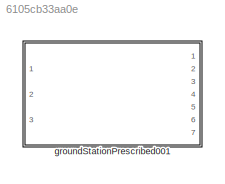
MODEL slx_6105cb33aa0e
KIND library
CONFIG AbsTol = auto
CONFIG EnableMultiTasking = off
CONFIG FixedStep = auto
CONFIG MaxStep = auto
CONFIG MinStep = auto
CONFIG RelTol = 1e-3
CONFIG SampleTimeConstraint = Unconstrained
CONFIG Solver = VariableStepAuto
CONFIG SolverName = VariableStepAuto
CONFIG StartTime = 0.0
CONFIG StopTime = 10.0
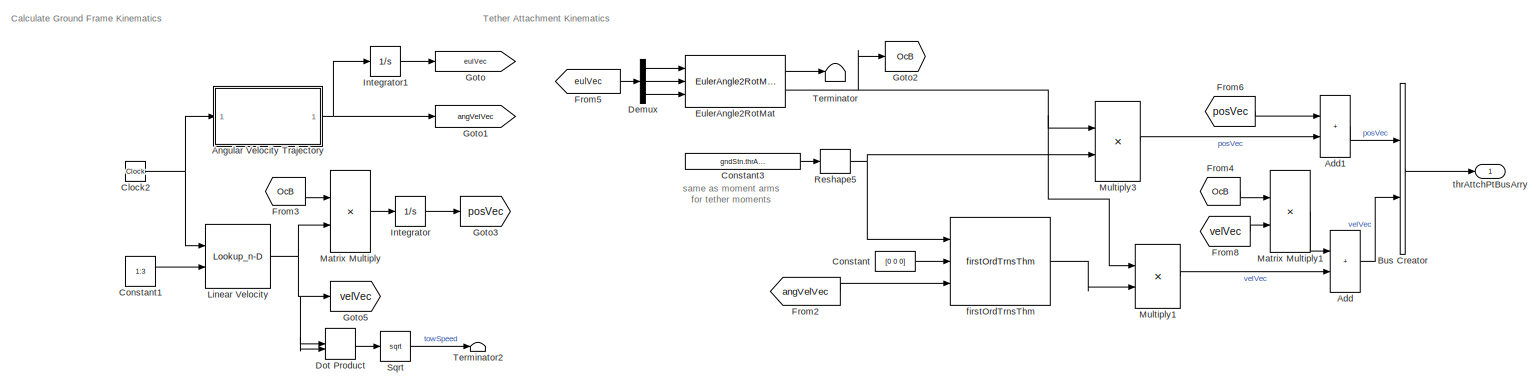
[diagram: groundStationPrescribed001 - part 1/2, full width, middle band]
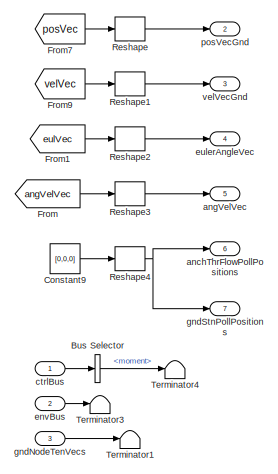
[diagram: groundStationPrescribed001 - part 2/2, right side, full height]
BLOCK [SubSystem] groundStationPrescribed001
  Ports = [3, 7]
  RequestExecContextInheritance = off
BLOCK [Sum] groundStationPrescribed001/Add
  IconShape = rectangular
  Ports = [2, 1]
BLOCK [Sum] groundStationPrescribed001/Add1
  IconShape = rectangular
  Ports = [2, 1]
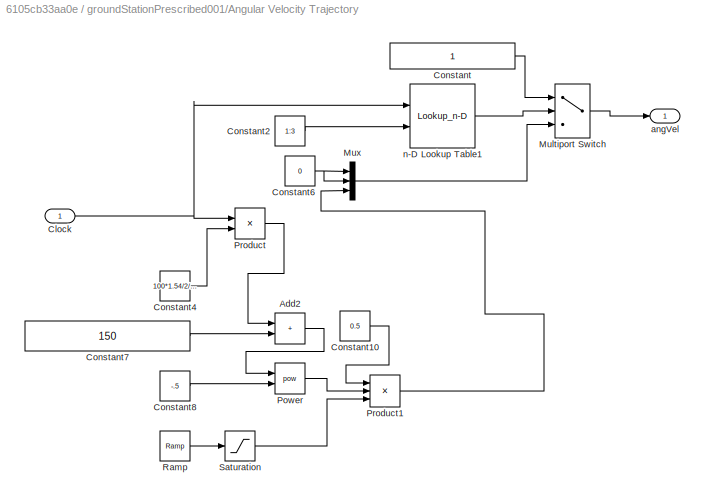
BLOCK [SubSystem] groundStationPrescribed001/Angular Velocity Trajectory
  Ports = [1, 1]
  RequestExecContextInheritance = off
BLOCK [Sum] groundStationPrescribed001/Angular Velocity Trajectory/Add2
  IconShape = rectangular
  Ports = [2, 1]
BLOCK [Inport] groundStationPrescribed001/Angular Velocity Trajectory/Clock
BLOCK [Constant] groundStationPrescribed001/Angular Velocity Trajectory/Constant
BLOCK [Constant] groundStationPrescribed001/Angular Velocity Trajectory/Constant10
  Value = 0.5
BLOCK [Constant] groundStationPrescribed001/Angular Velocity Trajectory/Constant2
  Value = 1:3
BLOCK [Constant] groundStationPrescribed001/Angular Velocity Trajectory/Constant4
  Value = 100*1.54/2/pi
BLOCK [Constant] groundStationPrescribed001/Angular Velocity Trajectory/Constant6
  Value = 0
BLOCK [Constant] groundStationPrescribed001/Angular Velocity Trajectory/Constant7
  Value = 150
BLOCK [Constant] groundStationPrescribed001/Angular Velocity Trajectory/Constant8
  Value = -.5
BLOCK [MultiPortSwitch] groundStationPrescribed001/Angular Velocity Trajectory/Multiport Switch
  InputSameDT = off
  Inputs = 2
  Ports = [3, 1]
  SaturateOnIntegerOverflow = off
BLOCK [Mux] groundStationPrescribed001/Angular Velocity Trajectory/Mux
  DisplayOption = bar
  Inputs = 3
  Ports = [3, 1]
BLOCK [Math] groundStationPrescribed001/Angular Velocity Trajectory/Power
  Operator = pow
  Ports = [2, 1]
BLOCK [Product] groundStationPrescribed001/Angular Velocity Trajectory/Product
  Ports = [2, 1]
BLOCK [Product] groundStationPrescribed001/Angular Velocity Trajectory/Product1
  Inputs = 3
  Ports = [3, 1]
BLOCK [Reference] groundStationPrescribed001/Angular Velocity Trajectory/Ramp  REF=simulink/Sources/Ramp
  Ports = [0, 1]
  SourceBlock = simulink/Sources/Ramp
  SourceProductBaseCode = SL
  SourceType = Ramp
BLOCK [Saturate] groundStationPrescribed001/Angular Velocity Trajectory/Saturation
  UpperLimit = 1
BLOCK [Outport] groundStationPrescribed001/Angular Velocity Trajectory/angVel
BLOCK [Lookup_n-D] groundStationPrescribed001/Angular Velocity Trajectory/n-D Lookup Table1
  BreakpointsForDimension1 = time
  BreakpointsForDimension2 = [1:3]
  BreakpointsForDimension3 = [5, 7]
  InternalRulePriority = Speed
  Ports = [2, 1]
  RndMeth = Simplest
  Table = angVel
BLOCK [BusCreator] groundStationPrescribed001/Bus Creator
  DisplayOption = bar
  InheritFromInputs = on
  Inputs = 2
  NonVirtualBus = on
  OutDataTypeStr = Bus: thrAttachPtKinematicsBus
  Ports = [2, 1]
BLOCK [BusSelector] groundStationPrescribed001/Bus Selector
  OutputSignals = moment
  Ports = [1, 1]
BLOCK [Clock] groundStationPrescribed001/Clock2
BLOCK [Constant] groundStationPrescribed001/Constant
  Value = [0 0 0]
BLOCK [Constant] groundStationPrescribed001/Constant1
  Value = 1:3
BLOCK [Constant] groundStationPrescribed001/Constant3
  Value = gndStn.thrAttach.posVec.Value
BLOCK [Constant] groundStationPrescribed001/Constant9
  Value = [0,0,0]
BLOCK [Demux] groundStationPrescribed001/Demux
  Outputs = 3
  Ports = [1, 3]
BLOCK [DotProduct] groundStationPrescribed001/Dot Product
  OutDataTypeStr = Inherit: Inherit via internal rule
BLOCK [Reference] groundStationPrescribed001/EulerAngle2RotMat  REF=eulAng2RotMat_ul/EulerAngle2RotMat
  Ports = [3, 2]
  SourceBlock = eulAng2RotMat_ul/EulerAngle2RotMat
  SourceType = SubSystem
BLOCK [From] groundStationPrescribed001/From
  GotoTag = angVelVec
BLOCK [From] groundStationPrescribed001/From1
  GotoTag = eulVec
BLOCK [From] groundStationPrescribed001/From2
  GotoTag = angVelVec
BLOCK [From] groundStationPrescribed001/From3
  GotoTag = OcB
BLOCK [From] groundStationPrescribed001/From4
  GotoTag = OcB
BLOCK [From] groundStationPrescribed001/From5
  GotoTag = eulVec
BLOCK [From] groundStationPrescribed001/From6
  GotoTag = posVec
BLOCK [From] groundStationPrescribed001/From7
  GotoTag = posVec
BLOCK [From] groundStationPrescribed001/From8
  GotoTag = velVec
BLOCK [From] groundStationPrescribed001/From9
  GotoTag = velVec
BLOCK [Goto] groundStationPrescribed001/Goto
  GotoTag = eulVec
BLOCK [Goto] groundStationPrescribed001/Goto1
  GotoTag = angVelVec
BLOCK [Goto] groundStationPrescribed001/Goto2
  GotoTag = OcB
BLOCK [Goto] groundStationPrescribed001/Goto3
  GotoTag = posVec
BLOCK [Goto] groundStationPrescribed001/Goto5
  GotoTag = velVec
BLOCK [Integrator] groundStationPrescribed001/Integrator
  InitialCondition = gndStn.initPosVecGnd.Value
  Ports = [1, 1]
BLOCK [Integrator] groundStationPrescribed001/Integrator1
  InitialCondition = gndStn.initEulAng.Value
  Ports = [1, 1]
BLOCK [Lookup_n-D] groundStationPrescribed001/Linear Velocity
  BreakpointsForDimension1 = time
  BreakpointsForDimension2 = [1:3]
  BreakpointsForDimension3 = [5, 7]
  InputSameDT = off
  InternalRulePriority = Speed
  Ports = [2, 1]
  RndMeth = Simplest
  Table = vel
BLOCK [Product] groundStationPrescribed001/Matrix Multiply
  Multiplication = Matrix(*)
  Ports = [2, 1]
BLOCK [Product] groundStationPrescribed001/Matrix Multiply1
  Multiplication = Matrix(*)
  Ports = [2, 1]
BLOCK [Product] groundStationPrescribed001/Multiply1
  Multiplication = Matrix(*)
  Ports = [2, 1]
BLOCK [Product] groundStationPrescribed001/Multiply3
  Multiplication = Matrix(*)
  Ports = [2, 1]
BLOCK [Reshape] groundStationPrescribed001/Reshape
  OutputDimensionality = Column vector (2-D)
  Ports = [1, 1]
BLOCK [Reshape] groundStationPrescribed001/Reshape1
  OutputDimensionality = Column vector (2-D)
  Ports = [1, 1]
BLOCK [Reshape] groundStationPrescribed001/Reshape2
  OutputDimensionality = Column vector (2-D)
  Ports = [1, 1]
BLOCK [Reshape] groundStationPrescribed001/Reshape3
  OutputDimensionality = Column vector (2-D)
  Ports = [1, 1]
BLOCK [Reshape] groundStationPrescribed001/Reshape4
  OutputDimensionality = Column vector (2-D)
  Ports = [1, 1]
BLOCK [Reshape] groundStationPrescribed001/Reshape5
  OutputDimensionality = Column vector (2-D)
  Ports = [1, 1]
BLOCK [Sqrt] groundStationPrescribed001/Sqrt
BLOCK [Terminator] groundStationPrescribed001/Terminator
BLOCK [Terminator] groundStationPrescribed001/Terminator1
BLOCK [Terminator] groundStationPrescribed001/Terminator2
BLOCK [Terminator] groundStationPrescribed001/Terminator3
BLOCK [Terminator] groundStationPrescribed001/Terminator4
BLOCK [Outport] groundStationPrescribed001/anchThrFlowPollPositions
  Port = 6
  VectorParamsAs1DForOutWhenUnconnected = off
BLOCK [Outport] groundStationPrescribed001/angVelVec
  Port = 5
  VectorParamsAs1DForOutWhenUnconnected = off
BLOCK [Inport] groundStationPrescribed001/ctrlBus
  OutDataTypeStr = Bus: gndStnCtrlBus
BLOCK [Inport] groundStationPrescribed001/envBus
  OutDataTypeStr = Bus: envBus
  Port = 2
BLOCK [Outport] groundStationPrescribed001/eulerAngleVec
  Port = 4
  VectorParamsAs1DForOutWhenUnconnected = off
BLOCK [Reference] groundStationPrescribed001/firstOrdTrnsThm  REF=firstOrdTrnsThm_ul/firstOrdTrnsThm
  Ports = [3, 1]
  SourceBlock = firstOrdTrnsThm_ul/firstOrdTrnsThm
  SourceType = SubSystem
BLOCK [Inport] groundStationPrescribed001/gndNodeTenVecs
  Port = 3
BLOCK [Outport] groundStationPrescribed001/gndStnPollPositions
  Port = 7
  VectorParamsAs1DForOutWhenUnconnected = off
BLOCK [Outport] groundStationPrescribed001/posVecGnd
  Port = 2
  VectorParamsAs1DForOutWhenUnconnected = off
BLOCK [Outport] groundStationPrescribed001/thrAttchPtBusArry
  VectorParamsAs1DForOutWhenUnconnected = off
BLOCK [Outport] groundStationPrescribed001/velVecGnd
  Port = 3
  VectorParamsAs1DForOutWhenUnconnected = off
ANNOTATION groundStationPrescribed001: Calculate Ground Frame Kinematics
ANNOTATION groundStationPrescribed001: Tether Attachment Kinematics
ANNOTATION groundStationPrescribed001: same as moment arms for tether moments
LINE groundStationPrescribed001/Add1:1 -> groundStationPrescribed001/Bus Creator:1
LINE groundStationPrescribed001/Add:1 -> groundStationPrescribed001/Bus Creator:2
LINE groundStationPrescribed001/Angular Velocity Trajectory/Add2:1 -> groundStationPrescribed001/Angular Velocity Trajectory/Power:1
NET groundStationPrescribed001/Angular Velocity Trajectory/Clock:1 -> groundStationPrescribed001/Angular Velocity Trajectory/Product:1, groundStationPrescribed001/Angular Velocity Trajectory/n-D Lookup Table1:1
LINE groundStationPrescribed001/Angular Velocity Trajectory/Constant10:1 -> groundStationPrescribed001/Angular Velocity Trajectory/Product1:1
LINE groundStationPrescribed001/Angular Velocity Trajectory/Constant2:1 -> groundStationPrescribed001/Angular Velocity Trajectory/n-D Lookup Table1:2
LINE groundStationPrescribed001/Angular Velocity Trajectory/Constant4:1 -> groundStationPrescribed001/Angular Velocity Trajectory/Product:2
NET groundStationPrescribed001/Angular Velocity Trajectory/Constant6:1 -> groundStationPrescribed001/Angular Velocity Trajectory/Mux:1, groundStationPrescribed001/Angular Velocity Trajectory/Mux:2
LINE groundStationPrescribed001/Angular Velocity Trajectory/Constant7:1 -> groundStationPrescribed001/Angular Velocity Trajectory/Add2:2
LINE groundStationPrescribed001/Angular Velocity Trajectory/Constant8:1 -> groundStationPrescribed001/Angular Velocity Trajectory/Power:2
LINE groundStationPrescribed001/Angular Velocity Trajectory/Constant:1 -> groundStationPrescribed001/Angular Velocity Trajectory/Multiport Switch:1
LINE groundStationPrescribed001/Angular Velocity Trajectory/Multiport Switch:1 -> groundStationPrescribed001/Angular Velocity Trajectory/angVel:1
LINE groundStationPrescribed001/Angular Velocity Trajectory/Mux:1 -> groundStationPrescribed001/Angular Velocity Trajectory/Multiport Switch:3
LINE groundStationPrescribed001/Angular Velocity Trajectory/Power:1 -> groundStationPrescribed001/Angular Velocity Trajectory/Product1:2
LINE groundStationPrescribed001/Angular Velocity Trajectory/Product1:1 -> groundStationPrescribed001/Angular Velocity Trajectory/Mux:3
LINE groundStationPrescribed001/Angular Velocity Trajectory/Product:1 -> groundStationPrescribed001/Angular Velocity Trajectory/Add2:1
LINE groundStationPrescribed001/Angular Velocity Trajectory/Ramp:1 -> groundStationPrescribed001/Angular Velocity Trajectory/Saturation:1
LINE groundStationPrescribed001/Angular Velocity Trajectory/Saturation:1 -> groundStationPrescribed001/Angular Velocity Trajectory/Product1:3
LINE groundStationPrescribed001/Angular Velocity Trajectory/n-D Lookup Table1:1 -> groundStationPrescribed001/Angular Velocity Trajectory/Multiport Switch:2
NET groundStationPrescribed001/Angular Velocity Trajectory:1 -> groundStationPrescribed001/Goto1:1, groundStationPrescribed001/Integrator1:1
LINE groundStationPrescribed001/Bus Creator:1 -> groundStationPrescribed001/thrAttchPtBusArry:1
LINE groundStationPrescribed001/Bus Selector:1 -> groundStationPrescribed001/Terminator4:1
NET groundStationPrescribed001/Clock2:1 -> groundStationPrescribed001/Angular Velocity Trajectory:1, groundStationPrescribed001/Linear Velocity:1
LINE groundStationPrescribed001/Constant1:1 -> groundStationPrescribed001/Linear Velocity:2
LINE groundStationPrescribed001/Constant3:1 -> groundStationPrescribed001/Reshape5:1
LINE groundStationPrescribed001/Constant9:1 -> groundStationPrescribed001/Reshape4:1
LINE groundStationPrescribed001/Constant:1 -> groundStationPrescribed001/firstOrdTrnsThm:2
LINE groundStationPrescribed001/Demux:1 -> groundStationPrescribed001/EulerAngle2RotMat:1
LINE groundStationPrescribed001/Demux:2 -> groundStationPrescribed001/EulerAngle2RotMat:2
LINE groundStationPrescribed001/Demux:3 -> groundStationPrescribed001/EulerAngle2RotMat:3
LINE groundStationPrescribed001/Dot Product:1 -> groundStationPrescribed001/Sqrt:1
LINE groundStationPrescribed001/EulerAngle2RotMat:1 -> groundStationPrescribed001/Terminator:1
NET groundStationPrescribed001/EulerAngle2RotMat:2 -> groundStationPrescribed001/Goto2:1, groundStationPrescribed001/Multiply1:1, groundStationPrescribed001/Multiply3:1
LINE groundStationPrescribed001/From1:1 -> groundStationPrescribed001/Reshape2:1
LINE groundStationPrescribed001/From2:1 -> groundStationPrescribed001/firstOrdTrnsThm:3
LINE groundStationPrescribed001/From3:1 -> groundStationPrescribed001/Matrix Multiply:1
LINE groundStationPrescribed001/From4:1 -> groundStationPrescribed001/Matrix Multiply1:1
LINE groundStationPrescribed001/From5:1 -> groundStationPrescribed001/Demux:1
LINE groundStationPrescribed001/From6:1 -> groundStationPrescribed001/Add1:1
LINE groundStationPrescribed001/From7:1 -> groundStationPrescribed001/Reshape:1
LINE groundStationPrescribed001/From8:1 -> groundStationPrescribed001/Matrix Multiply1:2
LINE groundStationPrescribed001/From9:1 -> groundStationPrescribed001/Reshape1:1
LINE groundStationPrescribed001/From:1 -> groundStationPrescribed001/Reshape3:1
LINE groundStationPrescribed001/Integrator1:1 -> groundStationPrescribed001/Goto:1
LINE groundStationPrescribed001/Integrator:1 -> groundStationPrescribed001/Goto3:1
NET groundStationPrescribed001/Linear Velocity:1 -> groundStationPrescribed001/Dot Product:1, groundStationPrescribed001/Dot Product:2, groundStationPrescribed001/Goto5:1, groundStationPrescribed001/Matrix Multiply:2
LINE groundStationPrescribed001/Matrix Multiply1:1 -> groundStationPrescribed001/Add:1
LINE groundStationPrescribed001/Matrix Multiply:1 -> groundStationPrescribed001/Integrator:1
LINE groundStationPrescribed001/Multiply1:1 -> groundStationPrescribed001/Add:2
LINE groundStationPrescribed001/Multiply3:1 -> groundStationPrescribed001/Add1:2
LINE groundStationPrescribed001/Reshape1:1 -> groundStationPrescribed001/velVecGnd:1
LINE groundStationPrescribed001/Reshape2:1 -> groundStationPrescribed001/eulerAngleVec:1
LINE groundStationPrescribed001/Reshape3:1 -> groundStationPrescribed001/angVelVec:1
NET groundStationPrescribed001/Reshape4:1 -> groundStationPrescribed001/anchThrFlowPollPositions:1, groundStationPrescribed001/gndStnPollPositions:1
NET groundStationPrescribed001/Reshape5:1 -> groundStationPrescribed001/Multiply3:2, groundStationPrescribed001/firstOrdTrnsThm:1
LINE groundStationPrescribed001/Reshape:1 -> groundStationPrescribed001/posVecGnd:1
LINE groundStationPrescribed001/Sqrt:1 -> groundStationPrescribed001/Terminator2:1
LINE groundStationPrescribed001/ctrlBus:1 -> groundStationPrescribed001/Bus Selector:1
LINE groundStationPrescribed001/envBus:1 -> groundStationPrescribed001/Terminator3:1
LINE groundStationPrescribed001/firstOrdTrnsThm:1 -> groundStationPrescribed001/Multiply1:2
LINE groundStationPrescribed001/gndNodeTenVecs:1 -> groundStationPrescribed001/Terminator1:1
note: NET lines group one-source signal fan-out (src -> all destinations, sorted); 1:1 wires keep LINE
